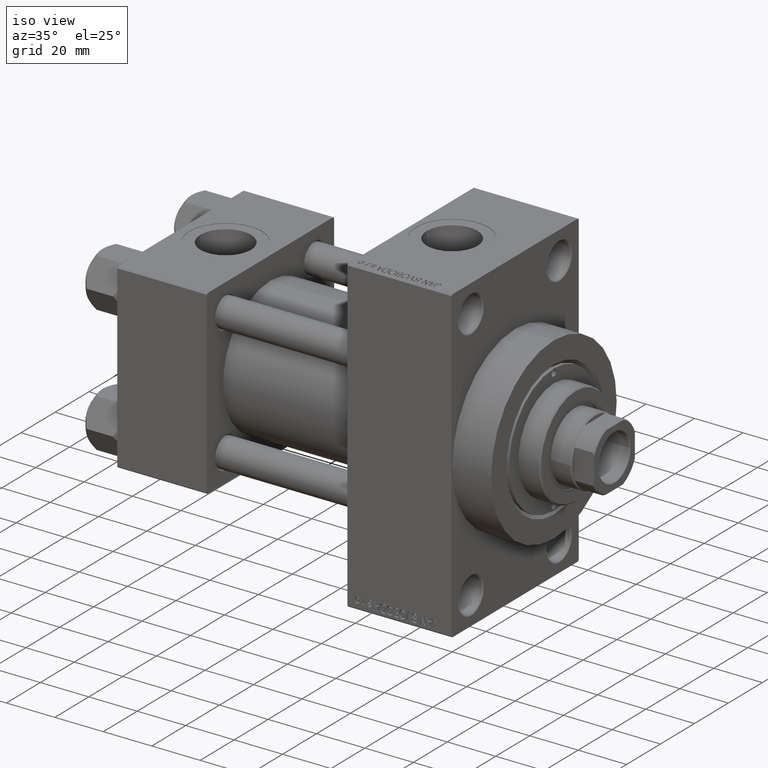
[diagram: clean part render]
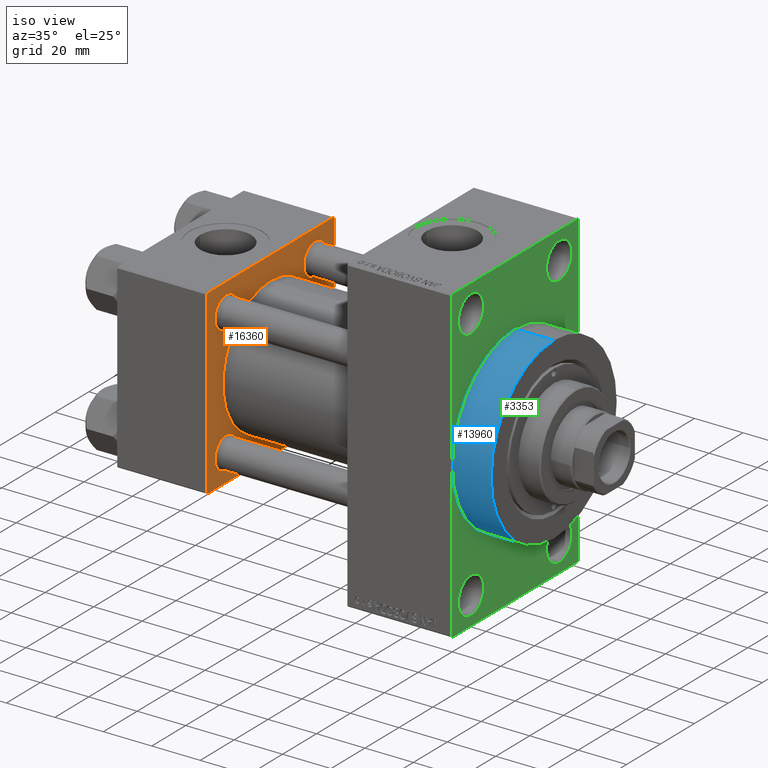
[diagram: same view with three faces highlighted in distinct colors, each labeled with its STEP entity id]
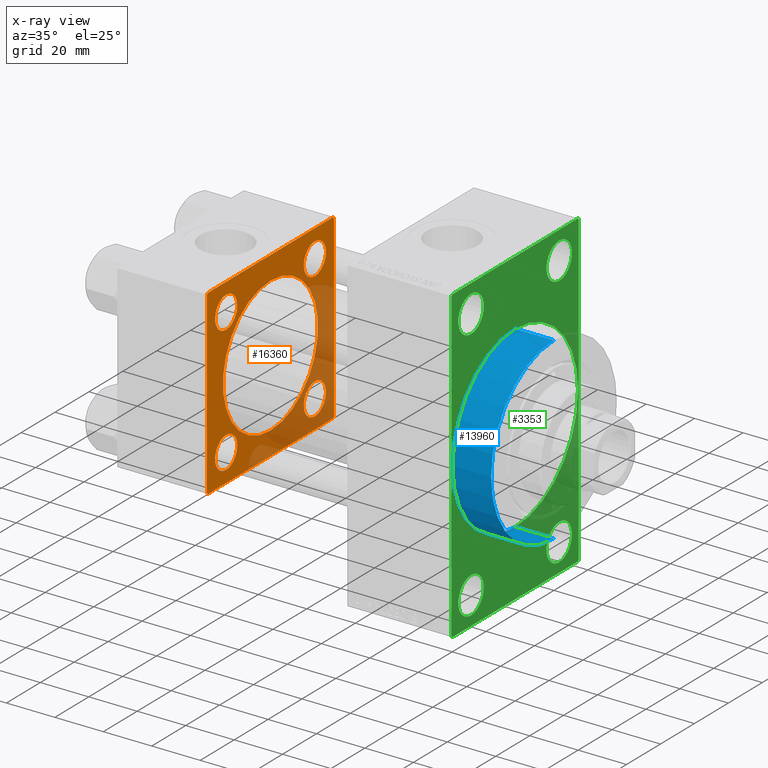
[diagram: x-ray of the same camera — body ghosted, the three highlighted faces saturated]
A machine part, iso view with three faces highlighted in distinct colors.
The next image is the same camera in x-ray (body ghosted, the three faces saturated) — at least one of them is partly hidden behind the body in this view.
Their STEP definitions:

[orange] entity #16360 — the highlighted planar face has unit normal (-1, 0, 0).
#12 = DIRECTION ( 'NONE',  ( 0.000000000000000000, 0.7071067811865524577, -0.7071067811865426878 ) ) ;
#381 = VERTEX_POINT ( 'NONE', #40695 ) ;
#411 = DIRECTION ( 'NONE',  ( -1.000000000000000000, 0.000000000000000000, -0.000000000000000000 ) ) ;
#478 = DIRECTION ( 'NONE',  ( 0.000000000000000000, 0.000000000000000000, -1.000000000000000000 ) ) ;
#1571 = DIRECTION ( 'NONE',  ( 0.000000000000000000, 0.000000000000000000, 1.000000000000000000 ) ) ;
#1578 = CARTESIAN_POINT ( 'NONE',  ( 37.00000000000000000, 26.14999999999999858, 32.65000000000001279 ) ) ;
#2701 = EDGE_LOOP ( 'NONE', ( #24061, #24915 ) ) ;
#3102 = FACE_BOUND ( 'NONE', #30793, .T. ) ;
#3106 = ORIENTED_EDGE ( 'NONE', *, *, #19962, .T. ) ;
#3264 = DIRECTION ( 'NONE',  ( -1.000000000000000000, 0.000000000000000000, -0.000000000000000000 ) ) ;
#4085 = EDGE_CURVE ( 'NONE', #19924, #12112, #9880, .T. ) ;
#4256 = CIRCLE ( 'NONE', #39134, 6.500000000000002665 ) ;
#4368 = ORIENTED_EDGE ( 'NONE', *, *, #19185, .T. ) ;
#5444 = DIRECTION ( 'NONE',  ( -1.000000000000000000, 0.000000000000000000, -0.000000000000000000 ) ) ;
#5661 = CARTESIAN_POINT ( 'NONE',  ( 37.00000000000000000, 36.99999999999997868, -37.50000000000000000 ) ) ;
#5967 = CARTESIAN_POINT ( 'NONE',  ( 37.00000000000000000, -26.14999999999999147, -32.65000000000006963 ) ) ;
#6554 = ORIENTED_EDGE ( 'NONE', *, *, #13471, .T. ) ;
#6560 = VERTEX_POINT ( 'NONE', #29854 ) ;
#6906 = ORIENTED_EDGE ( 'NONE', *, *, #40566, .F. ) ;
#7380 = LINE ( 'NONE', #33936, #33908 ) ;
#7778 = EDGE_CURVE ( 'NONE', #12112, #13762, #7380, .T. ) ;
#8048 = DIRECTION ( 'NONE',  ( -1.000000000000000000, 0.000000000000000000, -0.000000000000000000 ) ) ;
#8565 = EDGE_CURVE ( 'NONE', #45219, #46897, #18919, .T. ) ;
#8583 = VERTEX_POINT ( 'NONE', #5967 ) ;
#8889 = DIRECTION ( 'NONE',  ( 0.000000000000000000, -1.000000000000000000, -9.251858538542972814E-17 ) ) ;
#9665 = DIRECTION ( 'NONE',  ( 0.000000000000000000, 0.000000000000000000, 1.000000000000000000 ) ) ;
#9880 = LINE ( 'NONE', #47384, #18816 ) ;
#10324 = FACE_BOUND ( 'NONE', #2701, .T. ) ;
#10712 = EDGE_CURVE ( 'NONE', #8583, #381, #44308, .T. ) ;
#10972 = LINE ( 'NONE', #41257, #25227 ) ;
#11056 = CARTESIAN_POINT ( 'NONE',  ( 37.00000000000000000, 0.000000000000000000, 0.000000000000000000 ) ) ;
#11076 = CARTESIAN_POINT ( 'NONE',  ( 37.00000000000000000, 37.49999999999999289, -36.99999999999998579 ) ) ;
#11274 = EDGE_CURVE ( 'NONE', #28371, #45219, #28465, .T. ) ;
#11375 = CARTESIAN_POINT ( 'NONE',  ( 37.00000000000000000, 26.14999999999999858, -26.15000000000000213 ) ) ;
#11782 = EDGE_CURVE ( 'NONE', #19924, #33500, #23105, .T. ) ;
#11834 = CIRCLE ( 'NONE', #14207, 28.00000000000000000 ) ;
#12112 = VERTEX_POINT ( 'NONE', #47118 ) ;
#13471 = EDGE_CURVE ( 'NONE', #6560, #17021, #49163, .T. ) ;
#13633 = AXIS2_PLACEMENT_3D ( 'NONE', #32624, #27930, #24188 ) ;
#13762 = VERTEX_POINT ( 'NONE', #47044 ) ;
#14047 = PLANE ( 'NONE',  #40524 ) ;
#14207 = AXIS2_PLACEMENT_3D ( 'NONE', #38592, #46810, #1571 ) ;
#14290 = FACE_OUTER_BOUND ( 'NONE', #33956, .T. ) ;
#14553 = ORIENTED_EDGE ( 'NONE', *, *, #45153, .T. ) ;
#15236 = AXIS2_PLACEMENT_3D ( 'NONE', #39457, #5444, #9665 ) ;
#16100 = ORIENTED_EDGE ( 'NONE', *, *, #48629, .T. ) ;
#16143 = LINE ( 'NONE', #20845, #22355 ) ;
#16360 = ADVANCED_FACE ( 'NONE', ( #3102, #45082, #10324, #25466, #29689, #14290 ), #14047, .F. ) ;
#16487 = VERTEX_POINT ( 'NONE', #18991 ) ;
#16616 = EDGE_LOOP ( 'NONE', ( #4368, #6554 ) ) ;
#17021 = VERTEX_POINT ( 'NONE', #35286 ) ;
#17353 = VECTOR ( 'NONE', #28720, 1000.000000000000000 ) ;
#17393 = ORIENTED_EDGE ( 'NONE', *, *, #41312, .T. ) ;
#18032 = CARTESIAN_POINT ( 'NONE',  ( 37.00000000000000000, 8.269258236473776482E-16, -28.00000000000000000 ) ) ;
#18816 = VECTOR ( 'NONE', #43404, 1000.000000000000114 ) ;
#18919 = LINE ( 'NONE', #23619, #20433 ) ;
#18991 = CARTESIAN_POINT ( 'NONE',  ( 37.00000000000000000, 26.14999999999999858, 19.64999999999999858 ) ) ;
#19185 = EDGE_CURVE ( 'NONE', #17021, #6560, #21614, .T. ) ;
#19924 = VERTEX_POINT ( 'NONE', #38417 ) ;
#19962 = EDGE_CURVE ( 'NONE', #381, #8583, #47700, .T. ) ;
#20103 = ORIENTED_EDGE ( 'NONE', *, *, #10712, .T. ) ;
#20433 = VECTOR ( 'NONE', #12, 1000.000000000000000 ) ;
#20750 = AXIS2_PLACEMENT_3D ( 'NONE', #34459, #411, #33490 ) ;
#20845 = CARTESIAN_POINT ( 'NONE',  ( 37.00000000000000000, 37.49999999999999289, -36.99999999999998579 ) ) ;
#21301 = VERTEX_POINT ( 'NONE', #1578 ) ;
#21406 = AXIS2_PLACEMENT_3D ( 'NONE', #45090, #48327, #41594 ) ;
#21452 = CARTESIAN_POINT ( 'NONE',  ( 37.00000000000000000, -26.14999999999999147, 32.65000000000007674 ) ) ;
#21614 = CIRCLE ( 'NONE', #34296, 6.500000000000002665 ) ;
#22302 = DIRECTION ( 'NONE',  ( -1.000000000000000000, 0.000000000000000000, -0.000000000000000000 ) ) ;
#22355 = VECTOR ( 'NONE', #39944, 1000.000000000000114 ) ;
#22641 = CARTESIAN_POINT ( 'NONE',  ( 37.00000000000000000, -37.00000000000002132, -37.50000000000000711 ) ) ;
#22762 = ORIENTED_EDGE ( 'NONE', *, *, #33624, .F. ) ;
#22881 = AXIS2_PLACEMENT_3D ( 'NONE', #36034, #24132, #28341 ) ;
#23105 = LINE ( 'NONE', #34525, #29265 ) ;
#23204 = DIRECTION ( 'NONE',  ( 0.000000000000000000, 0.000000000000000000, 1.000000000000000000 ) ) ;
#23619 = CARTESIAN_POINT ( 'NONE',  ( 37.00000000000000000, -37.00000000000002132, -37.50000000000000711 ) ) ;
#24061 = ORIENTED_EDGE ( 'NONE', *, *, #35247, .T. ) ;
#24132 = DIRECTION ( 'NONE',  ( -1.000000000000000000, 0.000000000000000000, -0.000000000000000000 ) ) ;
#24188 = DIRECTION ( 'NONE',  ( 0.000000000000000000, 0.000000000000000000, 1.000000000000000000 ) ) ;
#24885 = ORIENTED_EDGE ( 'NONE', *, *, #4085, .T. ) ;
#24915 = ORIENTED_EDGE ( 'NONE', *, *, #46784, .T. ) ;
#25227 = VECTOR ( 'NONE', #26126, 1000.000000000000114 ) ;
#25466 = FACE_BOUND ( 'NONE', #39866, .T. ) ;
#26126 = DIRECTION ( 'NONE',  ( -0.000000000000000000, -0.7071067811865474617, -0.7071067811865474617 ) ) ;
#27930 = DIRECTION ( 'NONE',  ( 1.000000000000000000, -0.000000000000000000, 0.000000000000000000 ) ) ;
#28341 = DIRECTION ( 'NONE',  ( 0.000000000000000000, 0.000000000000000000, 1.000000000000000000 ) ) ;
#28371 = VERTEX_POINT ( 'NONE', #41940 ) ;
#28465 = LINE ( 'NONE', #47854, #17353 ) ;
#28720 = DIRECTION ( 'NONE',  ( 0.000000000000000000, 9.251858538542971581E-17, -1.000000000000000000 ) ) ;
#29265 = VECTOR ( 'NONE', #478, 1000.000000000000000 ) ;
#29689 = FACE_BOUND ( 'NONE', #39465, .T. ) ;
#29847 = DIRECTION ( 'NONE',  ( 0.000000000000000000, 0.000000000000000000, 1.000000000000000000 ) ) ;
#29854 = CARTESIAN_POINT ( 'NONE',  ( 37.00000000000000000, 26.14999999999999858, -19.65000000000000213 ) ) ;
#30169 = VERTEX_POINT ( 'NONE', #41281 ) ;
#30369 = CIRCLE ( 'NONE', #43049, 6.500000000000064837 ) ;
#30793 = EDGE_LOOP ( 'NONE', ( #20103, #3106 ) ) ;
#31485 = LINE ( 'NONE', #46636, #32633 ) ;
#31618 = EDGE_CURVE ( 'NONE', #13762, #28371, #10972, .T. ) ;
#31622 = ORIENTED_EDGE ( 'NONE', *, *, #8565, .T. ) ;
#31913 = ORIENTED_EDGE ( 'NONE', *, *, #31618, .T. ) ;
#32624 = CARTESIAN_POINT ( 'NONE',  ( 37.00000000000000000, -2.602085213965210642E-15, 0.000000000000000000 ) ) ;
#32633 = VECTOR ( 'NONE', #8889, 1000.000000000000000 ) ;
#32772 = DIRECTION ( 'NONE',  ( -1.000000000000000000, 0.000000000000000000, -0.000000000000000000 ) ) ;
#33490 = DIRECTION ( 'NONE',  ( 0.000000000000000000, 0.000000000000000000, 1.000000000000000000 ) ) ;
#33500 = VERTEX_POINT ( 'NONE', #11076 ) ;
#33624 = EDGE_CURVE ( 'NONE', #38024, #36252, #11834, .T. ) ;
#33908 = VECTOR ( 'NONE', #48614, 1000.000000000000000 ) ;
#33936 = CARTESIAN_POINT ( 'NONE',  ( 37.00000000000000000, 37.49999999999999289, 37.50000000000000000 ) ) ;
#33956 = EDGE_LOOP ( 'NONE', ( #6906, #14553, #38671, #24885, #46584, #31913, #41717, #31622 ) ) ;
#34296 = AXIS2_PLACEMENT_3D ( 'NONE', #11375, #22302, #48647 ) ;
#34459 = CARTESIAN_POINT ( 'NONE',  ( 37.00000000000000000, -26.14999999999999147, -26.15000000000000924 ) ) ;
#34525 = CARTESIAN_POINT ( 'NONE',  ( 37.00000000000000000, 37.49999999999999289, 37.50000000000000000 ) ) ;
#35027 = CIRCLE ( 'NONE', #13633, 28.00000000000000000 ) ;
#35247 = EDGE_CURVE ( 'NONE', #30169, #36022, #45971, .T. ) ;
#35286 = CARTESIAN_POINT ( 'NONE',  ( 37.00000000000000000, 26.14999999999999858, -32.65000000000000568 ) ) ;
#36022 = VERTEX_POINT ( 'NONE', #21452 ) ;
#36034 = CARTESIAN_POINT ( 'NONE',  ( 37.00000000000000000, -26.14999999999999147, -26.15000000000000924 ) ) ;
#36252 = VERTEX_POINT ( 'NONE', #44537 ) ;
#38024 = VERTEX_POINT ( 'NONE', #18032 ) ;
#38417 = CARTESIAN_POINT ( 'NONE',  ( 37.00000000000000000, 37.49999999999999289, 37.00000000000000000 ) ) ;
#38592 = CARTESIAN_POINT ( 'NONE',  ( 37.00000000000000000, -2.602085213965210642E-15, 0.000000000000000000 ) ) ;
#38671 = ORIENTED_EDGE ( 'NONE', *, *, #11782, .F. ) ;
#38782 = AXIS2_PLACEMENT_3D ( 'NONE', #48170, #32772, #47929 ) ;
#39134 = AXIS2_PLACEMENT_3D ( 'NONE', #42067, #8048, #23204 ) ;
#39457 = CARTESIAN_POINT ( 'NONE',  ( 37.00000000000000000, 26.14999999999999858, 26.15000000000000213 ) ) ;
#39465 = EDGE_LOOP ( 'NONE', ( #41413, #22762 ) ) ;
#39866 = EDGE_LOOP ( 'NONE', ( #16100, #17393 ) ) ;
#39944 = DIRECTION ( 'NONE',  ( -0.000000000000000000, 0.7071067811865474617, 0.7071067811865474617 ) ) ;
#40524 = AXIS2_PLACEMENT_3D ( 'NONE', #11056, #44592, #40610 ) ;
#40566 = EDGE_CURVE ( 'NONE', #48173, #46897, #31485, .T. ) ;
#40610 = DIRECTION ( 'NONE',  ( -0.000000000000000000, 0.000000000000000000, 1.000000000000000000 ) ) ;
#40695 = CARTESIAN_POINT ( 'NONE',  ( 37.00000000000000000, -26.14999999999999147, -19.64999999999995239 ) ) ;
#41257 = CARTESIAN_POINT ( 'NONE',  ( 37.00000000000000000, -37.50000000000000711, 36.99999999999999289 ) ) ;
#41281 = CARTESIAN_POINT ( 'NONE',  ( 37.00000000000000000, -26.14999999999999147, 19.64999999999994529 ) ) ;
#41312 = EDGE_CURVE ( 'NONE', #21301, #16487, #41417, .T. ) ;
#41413 = ORIENTED_EDGE ( 'NONE', *, *, #44597, .F. ) ;
#41417 = CIRCLE ( 'NONE', #15236, 6.500000000000002665 ) ;
#41594 = DIRECTION ( 'NONE',  ( 0.000000000000000000, 0.000000000000000000, 1.000000000000000000 ) ) ;
#41717 = ORIENTED_EDGE ( 'NONE', *, *, #11274, .T. ) ;
#41940 = CARTESIAN_POINT ( 'NONE',  ( 37.00000000000000000, -37.50000000000000711, 36.99999999999999289 ) ) ;
#42067 = CARTESIAN_POINT ( 'NONE',  ( 37.00000000000000000, 26.14999999999999858, 26.15000000000000213 ) ) ;
#43049 = AXIS2_PLACEMENT_3D ( 'NONE', #48487, #3264, #29847 ) ;
#43404 = DIRECTION ( 'NONE',  ( 0.000000000000000000, -0.7071067811865474617, 0.7071067811865474617 ) ) ;
#43938 = CARTESIAN_POINT ( 'NONE',  ( 37.00000000000000000, -37.50000000000000000, -37.00000000000003553 ) ) ;
#44308 = CIRCLE ( 'NONE', #22881, 6.500000000000057732 ) ;
#44537 = CARTESIAN_POINT ( 'NONE',  ( 37.00000000000000000, -2.602085213965210642E-15, 28.00000000000000000 ) ) ;
#44592 = DIRECTION ( 'NONE',  ( -1.000000000000000000, 0.000000000000000000, -0.000000000000000000 ) ) ;
#44597 = EDGE_CURVE ( 'NONE', #36252, #38024, #35027, .T. ) ;
#45082 = FACE_BOUND ( 'NONE', #16616, .T. ) ;
#45090 = CARTESIAN_POINT ( 'NONE',  ( 37.00000000000000000, 26.14999999999999858, -26.15000000000000213 ) ) ;
#45153 = EDGE_CURVE ( 'NONE', #48173, #33500, #16143, .T. ) ;
#45219 = VERTEX_POINT ( 'NONE', #43938 ) ;
#45971 = CIRCLE ( 'NONE', #38782, 6.500000000000064837 ) ;
#46584 = ORIENTED_EDGE ( 'NONE', *, *, #7778, .T. ) ;
#46636 = CARTESIAN_POINT ( 'NONE',  ( 37.00000000000000000, 37.49999999999999289, -37.50000000000000000 ) ) ;
#46784 = EDGE_CURVE ( 'NONE', #36022, #30169, #30369, .T. ) ;
#46810 = DIRECTION ( 'NONE',  ( 1.000000000000000000, -0.000000000000000000, 0.000000000000000000 ) ) ;
#46897 = VERTEX_POINT ( 'NONE', #22641 ) ;
#47044 = CARTESIAN_POINT ( 'NONE',  ( 37.00000000000000000, -37.00000000000000711, 37.49999999999999289 ) ) ;
#47118 = CARTESIAN_POINT ( 'NONE',  ( 37.00000000000000000, 36.99999999999999289, 37.50000000000000000 ) ) ;
#47384 = CARTESIAN_POINT ( 'NONE',  ( 37.00000000000000000, 36.99999999999999289, 37.50000000000000000 ) ) ;
#47700 = CIRCLE ( 'NONE', #20750, 6.500000000000057732 ) ;
#47854 = CARTESIAN_POINT ( 'NONE',  ( 37.00000000000000000, -37.50000000000000711, 37.49999999999999289 ) ) ;
#47929 = DIRECTION ( 'NONE',  ( 0.000000000000000000, 0.000000000000000000, 1.000000000000000000 ) ) ;
#48170 = CARTESIAN_POINT ( 'NONE',  ( 37.00000000000000000, -26.14999999999999147, 26.15000000000000924 ) ) ;
#48173 = VERTEX_POINT ( 'NONE', #5661 ) ;
#48327 = DIRECTION ( 'NONE',  ( -1.000000000000000000, 0.000000000000000000, -0.000000000000000000 ) ) ;
#48487 = CARTESIAN_POINT ( 'NONE',  ( 37.00000000000000000, -26.14999999999999147, 26.15000000000000924 ) ) ;
#48614 = DIRECTION ( 'NONE',  ( 0.000000000000000000, -1.000000000000000000, -9.251858538542971581E-17 ) ) ;
#48629 = EDGE_CURVE ( 'NONE', #16487, #21301, #4256, .T. ) ;
#48647 = DIRECTION ( 'NONE',  ( 0.000000000000000000, 0.000000000000000000, 1.000000000000000000 ) ) ;
#49163 = CIRCLE ( 'NONE', #21406, 6.500000000000002665 ) ;

[blue] entity #13960 — the highlighted cylindrical surface (partial cylindrical patch) has radius 37 mm, axis along (-1, -0, -0).
#1080 = CIRCLE ( 'NONE', #30434, 37.00000000000000000 ) ;
#1683 = CYLINDRICAL_SURFACE ( 'NONE', #23796, 37.00000000000000000 ) ;
#2627 = DIRECTION ( 'NONE',  ( -1.000000000000000000, -0.000000000000000000, -0.000000000000000000 ) ) ;
#3336 = VECTOR ( 'NONE', #13445, 1000.000000000000000 ) ;
#4000 = ORIENTED_EDGE ( 'NONE', *, *, #48792, .F. ) ;
#4271 = CARTESIAN_POINT ( 'NONE',  ( 154.0000000000000284, 0.000000000000000000, 0.000000000000000000 ) ) ;
#5447 = CARTESIAN_POINT ( 'NONE',  ( 138.0000000000000000, 0.000000000000000000, 0.000000000000000000 ) ) ;
#8694 = DIRECTION ( 'NONE',  ( 0.000000000000000000, 0.000000000000000000, -1.000000000000000000 ) ) ;
#11298 = VECTOR ( 'NONE', #2627, 1000.000000000000000 ) ;
#11430 = DIRECTION ( 'NONE',  ( 0.000000000000000000, 0.000000000000000000, -1.000000000000000000 ) ) ;
#11831 = EDGE_CURVE ( 'NONE', #37571, #26133, #41167, .T. ) ;
#12422 = DIRECTION ( 'NONE',  ( 1.000000000000000000, 0.000000000000000000, 0.000000000000000000 ) ) ;
#13195 = CARTESIAN_POINT ( 'NONE',  ( 154.0000000000000284, 0.000000000000000000, 37.00000000000000000 ) ) ;
#13445 = DIRECTION ( 'NONE',  ( -1.000000000000000000, -0.000000000000000000, -0.000000000000000000 ) ) ;
#13960 = ADVANCED_FACE ( 'NONE', ( #22674 ), #1683, .T. ) ;
#15790 = AXIS2_PLACEMENT_3D ( 'NONE', #5447, #12422, #8694 ) ;
#16852 = DIRECTION ( 'NONE',  ( 0.000000000000000000, 0.000000000000000000, 1.000000000000000000 ) ) ;
#17720 = VERTEX_POINT ( 'NONE', #41044 ) ;
#17872 = EDGE_CURVE ( 'NONE', #17720, #37571, #23884, .T. ) ;
#22674 = FACE_OUTER_BOUND ( 'NONE', #47992, .T. ) ;
#22792 = VERTEX_POINT ( 'NONE', #41258 ) ;
#22843 = CARTESIAN_POINT ( 'NONE',  ( 154.0000000000000284, 0.000000000000000000, 0.000000000000000000 ) ) ;
#23796 = AXIS2_PLACEMENT_3D ( 'NONE', #4271, #24303, #16852 ) ;
#23884 = LINE ( 'NONE', #13195, #3336 ) ;
#24303 = DIRECTION ( 'NONE',  ( -1.000000000000000000, -0.000000000000000000, -0.000000000000000000 ) ) ;
#25237 = LINE ( 'NONE', #40379, #11298 ) ;
#26133 = VERTEX_POINT ( 'NONE', #42874 ) ;
#30434 = AXIS2_PLACEMENT_3D ( 'NONE', #22843, #30780, #11430 ) ;
#30780 = DIRECTION ( 'NONE',  ( 1.000000000000000000, 0.000000000000000000, 0.000000000000000000 ) ) ;
#32919 = ORIENTED_EDGE ( 'NONE', *, *, #17872, .T. ) ;
#33550 = CARTESIAN_POINT ( 'NONE',  ( 138.0000000000000000, 0.000000000000000000, 37.00000000000000000 ) ) ;
#37571 = VERTEX_POINT ( 'NONE', #33550 ) ;
#40379 = CARTESIAN_POINT ( 'NONE',  ( 154.0000000000000284, 4.531193156845206793E-15, -37.00000000000000000 ) ) ;
#40863 = ORIENTED_EDGE ( 'NONE', *, *, #45495, .F. ) ;
#41044 = CARTESIAN_POINT ( 'NONE',  ( 154.0000000000000284, 0.000000000000000000, 37.00000000000000000 ) ) ;
#41167 = CIRCLE ( 'NONE', #15790, 37.00000000000000000 ) ;
#41258 = CARTESIAN_POINT ( 'NONE',  ( 154.0000000000000284, 4.531193156845206793E-15, -37.00000000000000000 ) ) ;
#42874 = CARTESIAN_POINT ( 'NONE',  ( 138.0000000000000000, 4.531193156845206793E-15, -37.00000000000000000 ) ) ;
#43452 = ORIENTED_EDGE ( 'NONE', *, *, #11831, .T. ) ;
#45495 = EDGE_CURVE ( 'NONE', #22792, #26133, #25237, .T. ) ;
#47992 = EDGE_LOOP ( 'NONE', ( #40863, #4000, #32919, #43452 ) ) ;
#48792 = EDGE_CURVE ( 'NONE', #17720, #22792, #1080, .T. ) ;

[green] entity #3353 — the highlighted planar face has unit normal (-1, 0, 0).
#640 = ORIENTED_EDGE ( 'NONE', *, *, #40686, .T. ) ;
#1046 = ORIENTED_EDGE ( 'NONE', *, *, #17198, .T. ) ;
#1048 = PLANE ( 'NONE',  #34609 ) ;
#1136 = ORIENTED_EDGE ( 'NONE', *, *, #2717, .F. ) ;
#1362 = DIRECTION ( 'NONE',  ( -1.000000000000000000, 0.000000000000000000, -0.000000000000000000 ) ) ;
#1691 = VERTEX_POINT ( 'NONE', #35259 ) ;
#1785 = LINE ( 'NONE', #17188, #12917 ) ;
#1790 = FACE_BOUND ( 'NONE', #36337, .T. ) ;
#1918 = ORIENTED_EDGE ( 'NONE', *, *, #11551, .T. ) ;
#2004 = CARTESIAN_POINT ( 'NONE',  ( 138.0000000000000000, -25.99999999999999645, 52.50000000000000000 ) ) ;
#2717 = EDGE_CURVE ( 'NONE', #36463, #4657, #33811, .T. ) ;
#3105 = CARTESIAN_POINT ( 'NONE',  ( 138.0000000000000000, -37.49999999999999289, 63.99999999999997158 ) ) ;
#3353 = ADVANCED_FACE ( 'NONE', ( #35814, #38804, #1790, #16953, #19954, #39051 ), #1048, .F. ) ;
#3541 = VERTEX_POINT ( 'NONE', #30098 ) ;
#3806 = CARTESIAN_POINT ( 'NONE',  ( 138.0000000000000000, 26.00000000000000000, -44.99999999999998579 ) ) ;
#3887 = ORIENTED_EDGE ( 'NONE', *, *, #11237, .T. ) ;
#4657 = VERTEX_POINT ( 'NONE', #47928 ) ;
#4743 = ORIENTED_EDGE ( 'NONE', *, *, #8812, .T. ) ;
#5290 = VECTOR ( 'NONE', #44755, 1000.000000000000000 ) ;
#5447 = CARTESIAN_POINT ( 'NONE',  ( 138.0000000000000000, 0.000000000000000000, 0.000000000000000000 ) ) ;
#5492 = CARTESIAN_POINT ( 'NONE',  ( 138.0000000000000000, 37.49999999999999289, -64.00000000000000000 ) ) ;
#5812 = CARTESIAN_POINT ( 'NONE',  ( 138.0000000000000000, 37.50000000000000000, 63.99999999999998579 ) ) ;
#6118 = CARTESIAN_POINT ( 'NONE',  ( 138.0000000000000000, 26.00000000000000000, 52.49999999999999289 ) ) ;
#6255 = CARTESIAN_POINT ( 'NONE',  ( 138.0000000000000000, 26.00000000000000000, 60.00000000000000000 ) ) ;
#6438 = AXIS2_PLACEMENT_3D ( 'NONE', #24968, #9567, #39126 ) ;
#6855 = EDGE_CURVE ( 'NONE', #1691, #28153, #38602, .T. ) ;
#7446 = CARTESIAN_POINT ( 'NONE',  ( 138.0000000000000000, 36.99999999999997158, 63.99999999999998579 ) ) ;
#7747 = ORIENTED_EDGE ( 'NONE', *, *, #16302, .T. ) ;
#8629 = CIRCLE ( 'NONE', #9402, 7.500000000000007105 ) ;
#8694 = DIRECTION ( 'NONE',  ( 0.000000000000000000, 0.000000000000000000, -1.000000000000000000 ) ) ;
#8812 = EDGE_CURVE ( 'NONE', #36463, #21166, #30527, .T. ) ;
#8954 = ORIENTED_EDGE ( 'NONE', *, *, #45849, .F. ) ;
#9140 = VERTEX_POINT ( 'NONE', #10008 ) ;
#9316 = CARTESIAN_POINT ( 'NONE',  ( 138.0000000000000000, -25.99999999999999645, 60.00000000000000711 ) ) ;
#9402 = AXIS2_PLACEMENT_3D ( 'NONE', #20973, #40568, #13025 ) ;
#9567 = DIRECTION ( 'NONE',  ( -1.000000000000000000, 0.000000000000000000, -0.000000000000000000 ) ) ;
#10008 = CARTESIAN_POINT ( 'NONE',  ( 138.0000000000000000, 26.00000000000000000, 44.99999999999998579 ) ) ;
#10034 = ORIENTED_EDGE ( 'NONE', *, *, #11557, .T. ) ;
#11017 = CIRCLE ( 'NONE', #45120, 7.500000000000007105 ) ;
#11059 = DIRECTION ( 'NONE',  ( 0.000000000000000000, 0.000000000000000000, -1.000000000000000000 ) ) ;
#11237 = EDGE_CURVE ( 'NONE', #9140, #39520, #11017, .T. ) ;
#11551 = EDGE_CURVE ( 'NONE', #21166, #19243, #35850, .T. ) ;
#11557 = EDGE_CURVE ( 'NONE', #15910, #41953, #8629, .T. ) ;
#11582 = CARTESIAN_POINT ( 'NONE',  ( 138.0000000000000000, 37.49999999999999289, -63.50000000000001421 ) ) ;
#11831 = EDGE_CURVE ( 'NONE', #37571, #26133, #41167, .T. ) ;
#12422 = DIRECTION ( 'NONE',  ( 1.000000000000000000, 0.000000000000000000, 0.000000000000000000 ) ) ;
#12470 = AXIS2_PLACEMENT_3D ( 'NONE', #46593, #36128, #20508 ) ;
#12917 = VECTOR ( 'NONE', #43516, 999.9999999999998863 ) ;
#12963 = DIRECTION ( 'NONE',  ( 0.000000000000000000, 0.000000000000000000, 1.000000000000000000 ) ) ;
#13025 = DIRECTION ( 'NONE',  ( 0.000000000000000000, 0.000000000000000000, 1.000000000000000000 ) ) ;
#13407 = ORIENTED_EDGE ( 'NONE', *, *, #36322, .F. ) ;
#13668 = VECTOR ( 'NONE', #43993, 1000.000000000000000 ) ;
#13699 = CARTESIAN_POINT ( 'NONE',  ( 138.0000000000000000, -37.49999999999999289, 63.49999999999994316 ) ) ;
#13704 = ORIENTED_EDGE ( 'NONE', *, *, #11831, .F. ) ;
#13718 = ORIENTED_EDGE ( 'NONE', *, *, #48464, .T. ) ;
#14311 = DIRECTION ( 'NONE',  ( 0.000000000000000000, 0.000000000000000000, 1.000000000000000000 ) ) ;
#14673 = ORIENTED_EDGE ( 'NONE', *, *, #46650, .T. ) ;
#15271 = AXIS2_PLACEMENT_3D ( 'NONE', #22706, #22227, #40842 ) ;
#15625 = CARTESIAN_POINT ( 'NONE',  ( 138.0000000000000000, -25.99999999999999645, 44.99999999999999289 ) ) ;
#15790 = AXIS2_PLACEMENT_3D ( 'NONE', #5447, #12422, #8694 ) ;
#15910 = VERTEX_POINT ( 'NONE', #15625 ) ;
#16302 = EDGE_CURVE ( 'NONE', #39520, #9140, #46105, .T. ) ;
#16768 = EDGE_LOOP ( 'NONE', ( #13718, #14673, #13407, #640, #1136, #4743, #1918, #33468 ) ) ;
#16953 = FACE_BOUND ( 'NONE', #24217, .T. ) ;
#17188 = CARTESIAN_POINT ( 'NONE',  ( 138.0000000000000000, -36.99999999999993605, -64.00000000000001421 ) ) ;
#17198 = EDGE_CURVE ( 'NONE', #33930, #31349, #31073, .T. ) ;
#18831 = EDGE_CURVE ( 'NONE', #19243, #30459, #47719, .T. ) ;
#19147 = DIRECTION ( 'NONE',  ( 1.000000000000000000, 0.000000000000000000, 0.000000000000000000 ) ) ;
#19172 = VECTOR ( 'NONE', #30941, 1000.000000000000000 ) ;
#19243 = VERTEX_POINT ( 'NONE', #27004 ) ;
#19954 = FACE_BOUND ( 'NONE', #23691, .T. ) ;
#20044 = CARTESIAN_POINT ( 'NONE',  ( 138.0000000000000000, 26.00000000000000000, -52.49999999999999289 ) ) ;
#20508 = DIRECTION ( 'NONE',  ( 0.000000000000000000, 0.000000000000000000, 1.000000000000000000 ) ) ;
#20973 = CARTESIAN_POINT ( 'NONE',  ( 138.0000000000000000, -25.99999999999999645, 52.50000000000000000 ) ) ;
#21166 = VERTEX_POINT ( 'NONE', #36411 ) ;
#21305 = AXIS2_PLACEMENT_3D ( 'NONE', #46600, #1362, #39367 ) ;
#21336 = VECTOR ( 'NONE', #36349, 1000.000000000000000 ) ;
#22227 = DIRECTION ( 'NONE',  ( -1.000000000000000000, 0.000000000000000000, -0.000000000000000000 ) ) ;
#22706 = CARTESIAN_POINT ( 'NONE',  ( 138.0000000000000000, -25.99999999999999645, -52.49999999999999289 ) ) ;
#23599 = ORIENTED_EDGE ( 'NONE', *, *, #37483, .T. ) ;
#23691 = EDGE_LOOP ( 'NONE', ( #13704, #8954 ) ) ;
#24087 = VECTOR ( 'NONE', #11059, 1000.000000000000000 ) ;
#24217 = EDGE_LOOP ( 'NONE', ( #3887, #7747 ) ) ;
#24831 = CARTESIAN_POINT ( 'NONE',  ( 138.0000000000000000, -25.99999999999999645, -60.00000000000000000 ) ) ;
#24968 = CARTESIAN_POINT ( 'NONE',  ( 138.0000000000000000, 26.00000000000000000, 52.49999999999999289 ) ) ;
#26133 = VERTEX_POINT ( 'NONE', #42874 ) ;
#26287 = AXIS2_PLACEMENT_3D ( 'NONE', #20044, #35401, #27485 ) ;
#27004 = CARTESIAN_POINT ( 'NONE',  ( 138.0000000000000000, -36.99999999999995737, 63.99999999999997158 ) ) ;
#27068 = CIRCLE ( 'NONE', #15271, 7.500000000000007105 ) ;
#27157 = DIRECTION ( 'NONE',  ( -1.000000000000000000, 0.000000000000000000, -0.000000000000000000 ) ) ;
#27485 = DIRECTION ( 'NONE',  ( 0.000000000000000000, 0.000000000000000000, 1.000000000000000000 ) ) ;
#27655 = ORIENTED_EDGE ( 'NONE', *, *, #29779, .T. ) ;
#28153 = VERTEX_POINT ( 'NONE', #24831 ) ;
#29779 = EDGE_CURVE ( 'NONE', #31349, #33930, #42708, .T. ) ;
#30098 = CARTESIAN_POINT ( 'NONE',  ( 138.0000000000000000, -37.49999999999999289, -63.49999999999997158 ) ) ;
#30459 = VERTEX_POINT ( 'NONE', #36855 ) ;
#30527 = LINE ( 'NONE', #7446, #38669 ) ;
#30932 = VECTOR ( 'NONE', #35536, 1000.000000000000000 ) ;
#30941 = DIRECTION ( 'NONE',  ( -0.000000000000000000, 0.7071067811865573427, 0.7071067811865378028 ) ) ;
#31073 = CIRCLE ( 'NONE', #26287, 7.500000000000007105 ) ;
#31349 = VERTEX_POINT ( 'NONE', #3806 ) ;
#32765 = CARTESIAN_POINT ( 'NONE',  ( 138.0000000000000000, 36.99999999999999289, -64.00000000000000000 ) ) ;
#33468 = ORIENTED_EDGE ( 'NONE', *, *, #18831, .T. ) ;
#33550 = CARTESIAN_POINT ( 'NONE',  ( 138.0000000000000000, 0.000000000000000000, 37.00000000000000000 ) ) ;
#33811 = LINE ( 'NONE', #48481, #5290 ) ;
#33930 = VERTEX_POINT ( 'NONE', #40940 ) ;
#33976 = CARTESIAN_POINT ( 'NONE',  ( 138.0000000000000000, -36.99999999999993605, -64.00000000000001421 ) ) ;
#34125 = CIRCLE ( 'NONE', #40459, 7.500000000000007105 ) ;
#34179 = EDGE_LOOP ( 'NONE', ( #10034, #23599 ) ) ;
#34609 = AXIS2_PLACEMENT_3D ( 'NONE', #46035, #27157, #38557 ) ;
#35259 = CARTESIAN_POINT ( 'NONE',  ( 138.0000000000000000, -25.99999999999999645, -44.99999999999998579 ) ) ;
#35401 = DIRECTION ( 'NONE',  ( -1.000000000000000000, 0.000000000000000000, -0.000000000000000000 ) ) ;
#35536 = DIRECTION ( 'NONE',  ( 0.000000000000000000, -1.000000000000000000, -1.850371707708594563E-16 ) ) ;
#35814 = FACE_BOUND ( 'NONE', #34179, .T. ) ;
#35850 = LINE ( 'NONE', #5812, #21336 ) ;
#36128 = DIRECTION ( 'NONE',  ( -1.000000000000000000, 0.000000000000000000, -0.000000000000000000 ) ) ;
#36322 = EDGE_CURVE ( 'NONE', #38583, #45421, #47965, .T. ) ;
#36337 = EDGE_LOOP ( 'NONE', ( #1046, #27655 ) ) ;
#36349 = DIRECTION ( 'NONE',  ( 0.000000000000000000, -1.000000000000000000, -1.850371707708594563E-16 ) ) ;
#36411 = CARTESIAN_POINT ( 'NONE',  ( 138.0000000000000000, 36.99999999999997158, 63.99999999999998579 ) ) ;
#36463 = VERTEX_POINT ( 'NONE', #44229 ) ;
#36855 = CARTESIAN_POINT ( 'NONE',  ( 138.0000000000000000, -37.49999999999999289, 63.49999999999994316 ) ) ;
#37483 = EDGE_CURVE ( 'NONE', #41953, #15910, #34125, .T. ) ;
#37512 = ORIENTED_EDGE ( 'NONE', *, *, #42105, .T. ) ;
#37571 = VERTEX_POINT ( 'NONE', #33550 ) ;
#38002 = CARTESIAN_POINT ( 'NONE',  ( 138.0000000000000000, 0.000000000000000000, 0.000000000000000000 ) ) ;
#38376 = LINE ( 'NONE', #11582, #19172 ) ;
#38453 = DIRECTION ( 'NONE',  ( 0.000000000000000000, -0.7071067811865672237, 0.7071067811865279218 ) ) ;
#38557 = DIRECTION ( 'NONE',  ( -0.000000000000000000, 0.000000000000000000, 1.000000000000000000 ) ) ;
#38568 = EDGE_LOOP ( 'NONE', ( #37512, #42236 ) ) ;
#38583 = VERTEX_POINT ( 'NONE', #32765 ) ;
#38602 = CIRCLE ( 'NONE', #12470, 7.500000000000007105 ) ;
#38669 = VECTOR ( 'NONE', #38453, 1000.000000000000000 ) ;
#38804 = FACE_BOUND ( 'NONE', #38568, .T. ) ;
#39051 = FACE_OUTER_BOUND ( 'NONE', #16768, .T. ) ;
#39126 = DIRECTION ( 'NONE',  ( 0.000000000000000000, 0.000000000000000000, 1.000000000000000000 ) ) ;
#39367 = DIRECTION ( 'NONE',  ( 0.000000000000000000, 0.000000000000000000, 1.000000000000000000 ) ) ;
#39520 = VERTEX_POINT ( 'NONE', #6255 ) ;
#40459 = AXIS2_PLACEMENT_3D ( 'NONE', #2004, #40502, #12963 ) ;
#40502 = DIRECTION ( 'NONE',  ( -1.000000000000000000, 0.000000000000000000, -0.000000000000000000 ) ) ;
#40568 = DIRECTION ( 'NONE',  ( -1.000000000000000000, 0.000000000000000000, -0.000000000000000000 ) ) ;
#40686 = EDGE_CURVE ( 'NONE', #38583, #4657, #38376, .T. ) ;
#40842 = DIRECTION ( 'NONE',  ( 0.000000000000000000, 0.000000000000000000, 1.000000000000000000 ) ) ;
#40940 = CARTESIAN_POINT ( 'NONE',  ( 138.0000000000000000, 26.00000000000000000, -60.00000000000000000 ) ) ;
#41167 = CIRCLE ( 'NONE', #15790, 37.00000000000000000 ) ;
#41953 = VERTEX_POINT ( 'NONE', #9316 ) ;
#42105 = EDGE_CURVE ( 'NONE', #28153, #1691, #27068, .T. ) ;
#42236 = ORIENTED_EDGE ( 'NONE', *, *, #6855, .T. ) ;
#42708 = CIRCLE ( 'NONE', #21305, 7.500000000000007105 ) ;
#42874 = CARTESIAN_POINT ( 'NONE',  ( 138.0000000000000000, 4.531193156845206793E-15, -37.00000000000000000 ) ) ;
#43516 = DIRECTION ( 'NONE',  ( 0.000000000000000000, 0.7071067811865574537, -0.7071067811865376918 ) ) ;
#43801 = AXIS2_PLACEMENT_3D ( 'NONE', #38002, #19147, #46206 ) ;
#43993 = DIRECTION ( 'NONE',  ( -0.000000000000000000, -0.7071067811865524577, -0.7071067811865426878 ) ) ;
#44120 = DIRECTION ( 'NONE',  ( -1.000000000000000000, 0.000000000000000000, -0.000000000000000000 ) ) ;
#44229 = CARTESIAN_POINT ( 'NONE',  ( 138.0000000000000000, 37.50000000000000000, 63.49999999999998579 ) ) ;
#44350 = LINE ( 'NONE', #3105, #24087 ) ;
#44755 = DIRECTION ( 'NONE',  ( 0.000000000000000000, -5.421010862427522170E-17, -1.000000000000000000 ) ) ;
#45120 = AXIS2_PLACEMENT_3D ( 'NONE', #6118, #44120, #14311 ) ;
#45421 = VERTEX_POINT ( 'NONE', #33976 ) ;
#45849 = EDGE_CURVE ( 'NONE', #26133, #37571, #46997, .T. ) ;
#46035 = CARTESIAN_POINT ( 'NONE',  ( 138.0000000000000000, 0.000000000000000000, 0.000000000000000000 ) ) ;
#46105 = CIRCLE ( 'NONE', #6438, 7.500000000000007105 ) ;
#46206 = DIRECTION ( 'NONE',  ( 0.000000000000000000, 0.000000000000000000, -1.000000000000000000 ) ) ;
#46593 = CARTESIAN_POINT ( 'NONE',  ( 138.0000000000000000, -25.99999999999999645, -52.49999999999999289 ) ) ;
#46600 = CARTESIAN_POINT ( 'NONE',  ( 138.0000000000000000, 26.00000000000000000, -52.49999999999999289 ) ) ;
#46650 = EDGE_CURVE ( 'NONE', #3541, #45421, #1785, .T. ) ;
#46997 = CIRCLE ( 'NONE', #43801, 37.00000000000000000 ) ;
#47719 = LINE ( 'NONE', #13699, #13668 ) ;
#47928 = CARTESIAN_POINT ( 'NONE',  ( 138.0000000000000000, 37.49999999999999289, -63.50000000000001421 ) ) ;
#47965 = LINE ( 'NONE', #5492, #30932 ) ;
#48464 = EDGE_CURVE ( 'NONE', #30459, #3541, #44350, .T. ) ;
#48481 = CARTESIAN_POINT ( 'NONE',  ( 138.0000000000000000, 37.50000000000000000, 63.99999999999998579 ) ) ;